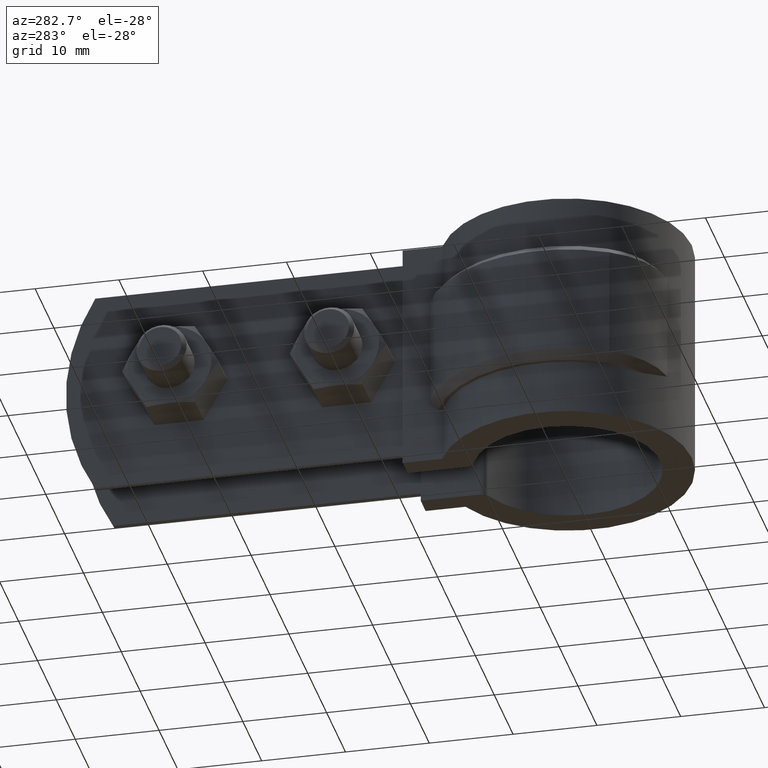
[diagram: clean part render]
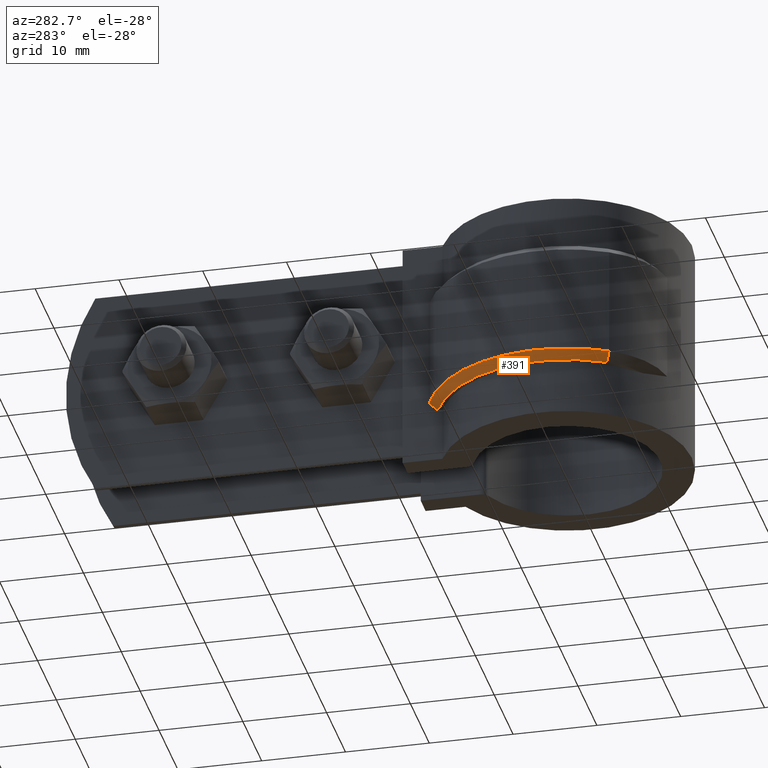
[diagram: same view with one face highlighted and labeled with its STEP entity id]
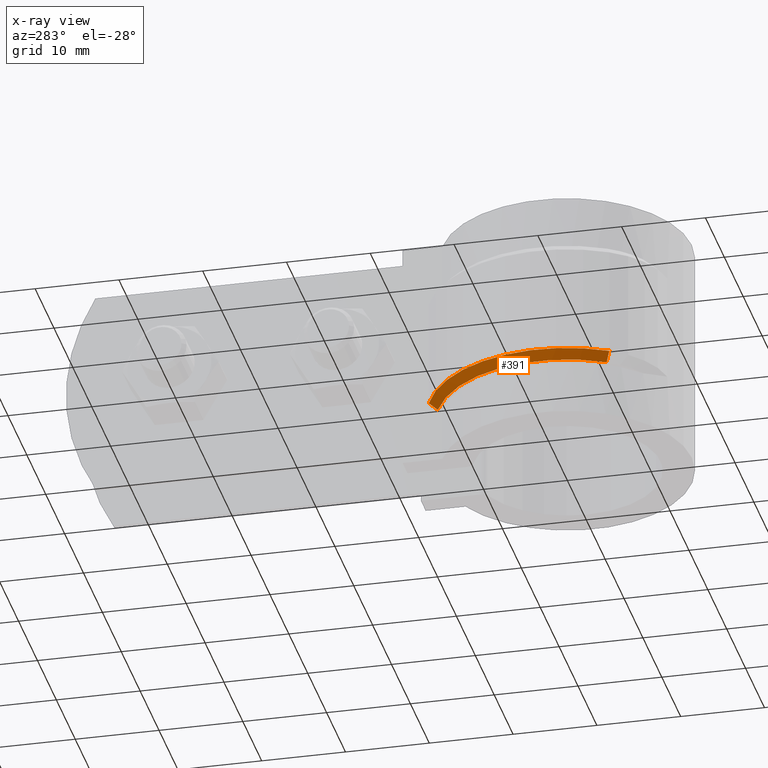
[diagram: x-ray of the same camera — body ghosted, the highlighted face saturated]
A machine part, auxiliary view. The second image highlights one B-rep face of the part: STEP entity #391.
The next image is the same camera in x-ray: the body ghosted, the highlighted face saturated — about 0% of this face is hidden behind the body in this view.
In plain terms, the highlighted conical surface has half-angle 45 deg.
Its self-contained STEP definition (entity closure, byte-faithful):
#391 = ADVANCED_FACE( '', ( #667 ), #668, .T. );
#667 = FACE_OUTER_BOUND( '', #1309, .T. );
#668 = CONICAL_SURFACE( '', #1310, 16.3550000000000, 0.785398163397447 );
#1309 = EDGE_LOOP( '', ( #3078, #3079, #3080, #3081 ) );
#1310 = AXIS2_PLACEMENT_3D( '', #3082, #3083, #3084 );
#3078 = ORIENTED_EDGE( '', *, *, #4289, .F. );
#3079 = ORIENTED_EDGE( '', *, *, #4415, .F. );
#3080 = ORIENTED_EDGE( '', *, *, #4412, .F. );
#3081 = ORIENTED_EDGE( '', *, *, #4416, .F. );
#3082 = CARTESIAN_POINT( '', ( 0.000000000000000, 0.000000000000000, -19.0000000000000 ) );
#3083 = DIRECTION( '', ( 0.000000000000000, 0.000000000000000, 1.00000000000000 ) );
#3084 = DIRECTION( '', ( 1.00000000000000, 0.000000000000000, 0.000000000000000 ) );
#4289 = EDGE_CURVE( '', #4884, #4887, #4888, .T. );
#4412 = EDGE_CURVE( '', #5101, #5102, #5103, .T. );
#4415 = EDGE_CURVE( '', #5102, #4884, #5106, .F. );
#4416 = EDGE_CURVE( '', #4887, #5101, #5107, .T. );
#4884 = VERTEX_POINT( '', #6426 );
#4887 = VERTEX_POINT( '', #6430 );
#4888 = B_SPLINE_CURVE_WITH_KNOTS( '', 3, ( #6431, #6432, #6433, #6434 ), .UNSPECIFIED., .F., .F., ( 4, 4 ), ( 0.000000000000000, 0.00147444161299851 ), .UNSPECIFIED. );
#5101 = VERTEX_POINT( '', #7074 );
#5102 = VERTEX_POINT( '', #7075 );
#5103 = LINE( '', #7076, #7077 );
#5106 = CIRCLE( '', #7080, 15.3550000000000 );
#5107 = CIRCLE( '', #7081, 16.3550000000000 );
#6426 = CARTESIAN_POINT( '', ( -6.10000000000000, 14.0913457483663, -20.0000000000000 ) );
#6430 = CARTESIAN_POINT( '', ( -6.10000000000000, 15.1748484341690, -19.0000000000000 ) );
#6431 = CARTESIAN_POINT( '', ( -6.10000000000000, 14.0913457483663, -20.0000000000000 ) );
#6432 = CARTESIAN_POINT( '', ( -6.10000000000000, 14.4534554887810, -19.6676904232475 ) );
#6433 = CARTESIAN_POINT( '', ( -6.10000000000000, 14.8145635994486, -19.3342872369313 ) );
#6434 = CARTESIAN_POINT( '', ( -6.10000000000000, 15.1748484341690, -19.0000000000000 ) );
#7074 = CARTESIAN_POINT( '', ( -14.1597412067696, -8.18460469157254, -19.0000000000000 ) );
#7075 = CARTESIAN_POINT( '', ( -13.2939667520604, -7.68417028670721, -20.0000000000000 ) );
#7076 = CARTESIAN_POINT( '', ( -14.1597412067696, -8.18460469157254, -19.0000000000000 ) );
#7077 = VECTOR( '', #8284, 1000.00000000000 );
#7080 = AXIS2_PLACEMENT_3D( '', #8291, #8292, #8293 );
#7081 = AXIS2_PLACEMENT_3D( '', #8294, #8295, #8296 );
#8284 = DIRECTION( '', ( 0.612194987902986, 0.353860561219332, -0.707106781186549 ) );
#8291 = CARTESIAN_POINT( '', ( 0.000000000000000, 0.000000000000000, -20.0000000000000 ) );
#8292 = DIRECTION( '', ( 0.000000000000000, 0.000000000000000, 1.00000000000000 ) );
#8293 = DIRECTION( '', ( 1.00000000000000, 0.000000000000000, 0.000000000000000 ) );
#8294 = CARTESIAN_POINT( '', ( 0.000000000000000, 0.000000000000000, -19.0000000000000 ) );
#8295 = DIRECTION( '', ( 0.000000000000000, 0.000000000000000, 1.00000000000000 ) );
#8296 = DIRECTION( '', ( 1.00000000000000, 0.000000000000000, 0.000000000000000 ) );